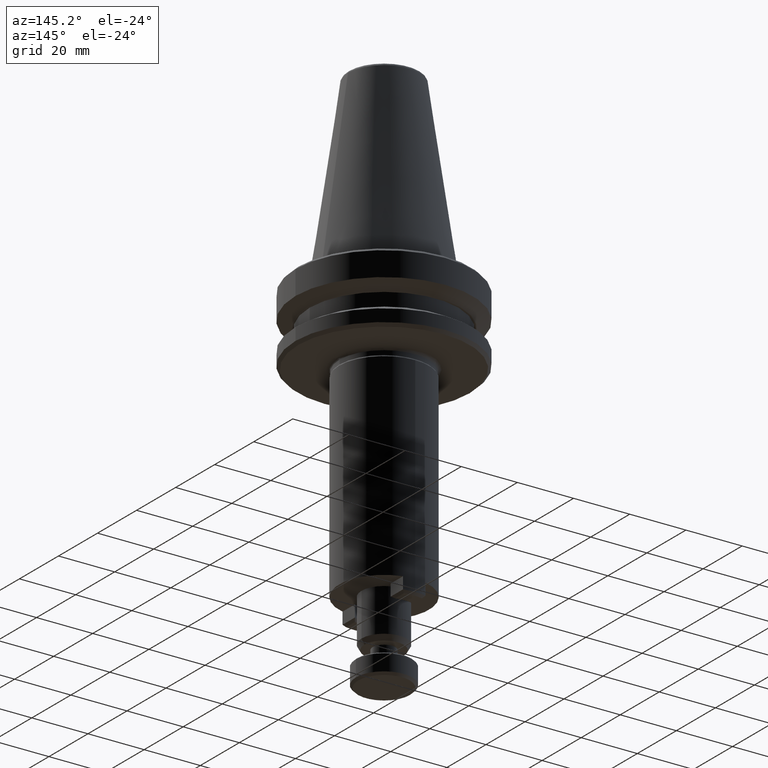
[diagram: clean part render]
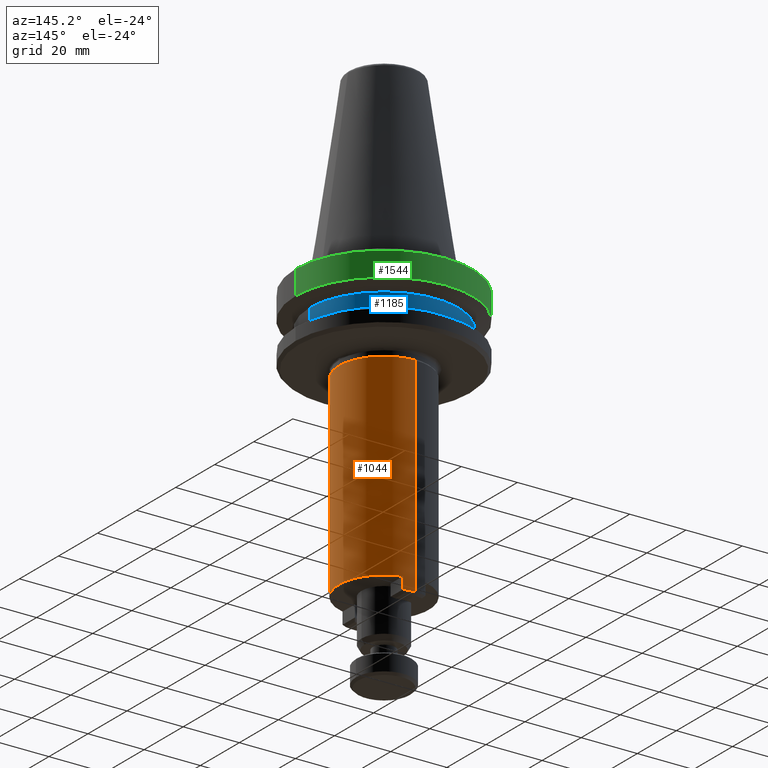
[diagram: same view with three faces highlighted in distinct colors, each labeled with its STEP entity id]
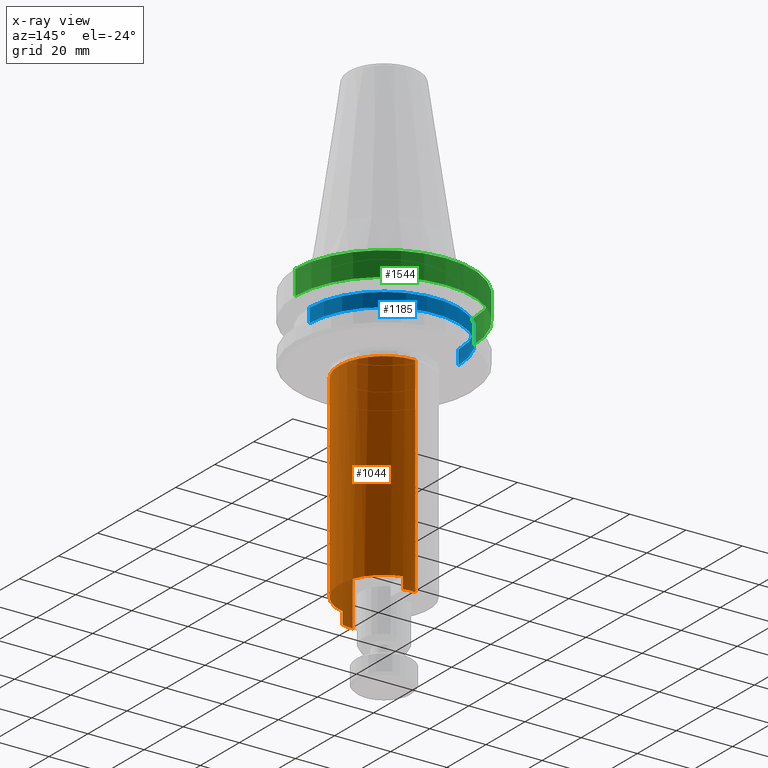
[diagram: x-ray of the same camera — body ghosted, the three highlighted faces saturated]
A machine part, auxiliary view with three faces highlighted in distinct colors.
The next image is the same camera in x-ray (body ghosted, the three faces saturated) — at least one of them is partly hidden behind the body in this view.
Their STEP definitions:

[orange] entity #1044 — the highlighted cylindrical surface (partial cylindrical patch) has radius 16 mm, axis along (0, -0, 1).
#14 = LINE ( 'NONE', #1564, #887 ) ;
#24 = CARTESIAN_POINT ( 'NONE',  ( 103.6964639303010100, 110.6694344999690100, 23.16104099501840000 ) ) ;
#37 = DIRECTION ( 'NONE',  ( 0.0000000000000000000, -2.710505431213761100E-017, 1.000000000000000000 ) ) ;
#52 = CIRCLE ( 'NONE', #1919, 16.00000000000001400 ) ;
#129 = DIRECTION ( 'NONE',  ( 0.0000000000000000000, -2.710505431213761100E-017, 1.000000000000000000 ) ) ;
#135 = VERTEX_POINT ( 'NONE', #2187 ) ;
#155 = ORIENTED_EDGE ( 'NONE', *, *, #2237, .F. ) ;
#219 = DIRECTION ( 'NONE',  ( 0.0000000000000000000, -1.000000000000000000, 0.0000000000000000000 ) ) ;
#238 = CARTESIAN_POINT ( 'NONE',  ( 103.6964639303010100, 94.66943449996901400, 23.16104099501840000 ) ) ;
#268 = DIRECTION ( 'NONE',  ( 0.0000000000000000000, -1.000000000000000000, 0.0000000000000000000 ) ) ;
#320 = CIRCLE ( 'NONE', #1511, 16.00000000000000000 ) ;
#361 = EDGE_CURVE ( 'NONE', #1971, #2012, #1680, .T. ) ;
#423 = CARTESIAN_POINT ( 'NONE',  ( 103.6964639303010100, 110.6694344999690100, 23.16104099501840000 ) ) ;
#465 = AXIS2_PLACEMENT_3D ( 'NONE', #514, #2108, #1923 ) ;
#497 = ORIENTED_EDGE ( 'NONE', *, *, #2190, .F. ) ;
#514 = CARTESIAN_POINT ( 'NONE',  ( 103.6964639303010100, 110.6694344999690100, 23.16104099501840400 ) ) ;
#641 = LINE ( 'NONE', #714, #2002 ) ;
#647 = ORIENTED_EDGE ( 'NONE', *, *, #361, .F. ) ;
#714 = CARTESIAN_POINT ( 'NONE',  ( 107.6964639288723300, 126.1613678851675800, 23.16104099501840400 ) ) ;
#759 = EDGE_CURVE ( 'NONE', #1269, #1659, #819, .T. ) ;
#776 = VECTOR ( 'NONE', #37, 1000.000000000000000 ) ;
#819 = LINE ( 'NONE', #1798, #776 ) ;
#846 = ORIENTED_EDGE ( 'NONE', *, *, #996, .T. ) ;
#882 = FACE_OUTER_BOUND ( 'NONE', #1078, .T. ) ;
#887 = VECTOR ( 'NONE', #1744, 1000.000000000000000 ) ;
#891 = DIRECTION ( 'NONE',  ( -0.0000000000000000000, -0.0000000000000000000, 1.000000000000000000 ) ) ;
#919 = CIRCLE ( 'NONE', #1329, 16.00000000000001400 ) ;
#980 = DIRECTION ( 'NONE',  ( 0.0000000000000000000, -2.710505431213761100E-017, 1.000000000000000000 ) ) ;
#996 = EDGE_CURVE ( 'NONE', #1679, #2085, #14, .T. ) ;
#1033 = AXIS2_PLACEMENT_3D ( 'NONE', #423, #980, #268 ) ;
#1044 = ADVANCED_FACE ( 'NONE', ( #882 ), #2199, .T. ) ;
#1072 = DIRECTION ( 'NONE',  ( -1.000000000000000000, 0.0000000000000000000, 0.0000000000000000000 ) ) ;
#1078 = EDGE_LOOP ( 'NONE', ( #2081, #1140, #497, #155, #647, #1870, #846, #1383, #1355 ) ) ;
#1133 = EDGE_CURVE ( 'NONE', #1664, #1269, #1615, .T. ) ;
#1140 = ORIENTED_EDGE ( 'NONE', *, *, #759, .T. ) ;
#1199 = CARTESIAN_POINT ( 'NONE',  ( 103.6964639303010100, 126.6694344999690400, 97.36104099501800100 ) ) ;
#1206 = DIRECTION ( 'NONE',  ( -1.000000000000000000, 0.0000000000000000000, 0.0000000000000000000 ) ) ;
#1210 = VECTOR ( 'NONE', #129, 1000.000000000000000 ) ;
#1212 = CARTESIAN_POINT ( 'NONE',  ( 107.6964639316933600, 95.17750111549885600, 27.36104099901839600 ) ) ;
#1261 = DIRECTION ( 'NONE',  ( 0.0000000000000000000, -2.710505431213761100E-017, 1.000000000000000000 ) ) ;
#1269 = VERTEX_POINT ( 'NONE', #1649 ) ;
#1286 = CARTESIAN_POINT ( 'NONE',  ( 107.6964639321195800, 95.17750111560890500, 23.16104099501840000 ) ) ;
#1329 = AXIS2_PLACEMENT_3D ( 'NONE', #2074, #1881, #1206 ) ;
#1355 = ORIENTED_EDGE ( 'NONE', *, *, #1797, .T. ) ;
#1383 = ORIENTED_EDGE ( 'NONE', *, *, #1486, .T. ) ;
#1423 = CARTESIAN_POINT ( 'NONE',  ( 103.6964639303010100, 110.6694344999690100, 97.36104099501800100 ) ) ;
#1456 = EDGE_CURVE ( 'NONE', #1971, #1679, #1581, .T. ) ;
#1461 = CARTESIAN_POINT ( 'NONE',  ( 103.6964639303010100, 110.6694344999690100, 27.36104099901840300 ) ) ;
#1486 = EDGE_CURVE ( 'NONE', #2085, #135, #320, .T. ) ;
#1511 = AXIS2_PLACEMENT_3D ( 'NONE', #1461, #2257, #2019 ) ;
#1564 = CARTESIAN_POINT ( 'NONE',  ( 107.6964639339381600, 95.17750111607846000, 23.16104099501840400 ) ) ;
#1581 = CIRCLE ( 'NONE', #1033, 16.00000000000000000 ) ;
#1615 = CIRCLE ( 'NONE', #1654, 16.00000000000000000 ) ;
#1649 = CARTESIAN_POINT ( 'NONE',  ( 103.6964639303010100, 126.6694344999690400, 23.16104099501840000 ) ) ;
#1654 = AXIS2_PLACEMENT_3D ( 'NONE', #24, #1261, #219 ) ;
#1659 = VERTEX_POINT ( 'NONE', #1199 ) ;
#1664 = VERTEX_POINT ( 'NONE', #1853 ) ;
#1679 = VERTEX_POINT ( 'NONE', #1286 ) ;
#1680 = LINE ( 'NONE', #1947, #1210 ) ;
#1744 = DIRECTION ( 'NONE',  ( 0.0000000000000000000, -2.710505431213761100E-017, 1.000000000000000000 ) ) ;
#1784 = CARTESIAN_POINT ( 'NONE',  ( 119.6964639303010200, 110.6694344999690100, 97.36104099501800100 ) ) ;
#1797 = EDGE_CURVE ( 'NONE', #135, #1664, #641, .T. ) ;
#1798 = CARTESIAN_POINT ( 'NONE',  ( 103.6964639303010100, 126.6694344999690400, 23.16104099501840400 ) ) ;
#1853 = CARTESIAN_POINT ( 'NONE',  ( 107.6964639296286900, 126.1613678851458600, 23.16104099434608400 ) ) ;
#1870 = ORIENTED_EDGE ( 'NONE', *, *, #1456, .T. ) ;
#1881 = DIRECTION ( 'NONE',  ( -0.0000000000000000000, -0.0000000000000000000, 1.000000000000000000 ) ) ;
#1894 = CARTESIAN_POINT ( 'NONE',  ( 103.6964639303010100, 94.66943449996901400, 97.36104099501800100 ) ) ;
#1919 = AXIS2_PLACEMENT_3D ( 'NONE', #1423, #891, #1072 ) ;
#1923 = DIRECTION ( 'NONE',  ( 0.0000000000000000000, -1.000000000000000000, 0.0000000000000000000 ) ) ;
#1927 = DIRECTION ( 'NONE',  ( -0.0000000000000000000, 2.710505431213761100E-017, -1.000000000000000000 ) ) ;
#1947 = CARTESIAN_POINT ( 'NONE',  ( 103.6964639303010100, 94.66943449996901400, 23.16104099501840400 ) ) ;
#1971 = VERTEX_POINT ( 'NONE', #238 ) ;
#2002 = VECTOR ( 'NONE', #1927, 1000.000000000000000 ) ;
#2012 = VERTEX_POINT ( 'NONE', #1894 ) ;
#2019 = DIRECTION ( 'NONE',  ( 0.0000000000000000000, -1.000000000000000000, 0.0000000000000000000 ) ) ;
#2074 = CARTESIAN_POINT ( 'NONE',  ( 103.6964639303010100, 110.6694344999690100, 97.36104099501800100 ) ) ;
#2081 = ORIENTED_EDGE ( 'NONE', *, *, #1133, .T. ) ;
#2085 = VERTEX_POINT ( 'NONE', #1212 ) ;
#2108 = DIRECTION ( 'NONE',  ( 0.0000000000000000000, -2.710505431213761100E-017, 1.000000000000000000 ) ) ;
#2167 = VERTEX_POINT ( 'NONE', #1784 ) ;
#2187 = CARTESIAN_POINT ( 'NONE',  ( 107.6964639295866800, 126.1613678849831400, 27.36104099901839600 ) ) ;
#2190 = EDGE_CURVE ( 'NONE', #2167, #1659, #919, .T. ) ;
#2199 = CYLINDRICAL_SURFACE ( 'NONE', #465, 16.00000000000000000 ) ;
#2237 = EDGE_CURVE ( 'NONE', #2012, #2167, #52, .T. ) ;
#2257 = DIRECTION ( 'NONE',  ( 0.0000000000000000000, -2.710505431213761100E-017, 1.000000000000000000 ) ) ;

[blue] entity #1185 — the highlighted cylindrical surface (partial cylindrical patch) has radius 26.5 mm, axis along (-0, -0, -1).
#279 = EDGE_CURVE ( 'NONE', #1110, #1481, #1891, .T. ) ;
#294 = CARTESIAN_POINT ( 'NONE',  ( 130.1964639249378900, 110.6694344999690100, -1.638959004981580800 ) ) ;
#308 = EDGE_CURVE ( 'NONE', #345, #1110, #2259, .T. ) ;
#322 = CARTESIAN_POINT ( 'NONE',  ( 77.19646393566412700, 110.6694344999690100, 113.2610409950169800 ) ) ;
#344 = AXIS2_PLACEMENT_3D ( 'NONE', #1508, #2223, #466 ) ;
#345 = VERTEX_POINT ( 'NONE', #322 ) ;
#446 = ORIENTED_EDGE ( 'NONE', *, *, #279, .F. ) ;
#466 = DIRECTION ( 'NONE',  ( -1.000000000000000000, 0.0000000000000000000, 0.0000000000000000000 ) ) ;
#474 = CARTESIAN_POINT ( 'NONE',  ( 77.19646393566412700, 110.6694344999690100, -1.638959004981580800 ) ) ;
#747 = CARTESIAN_POINT ( 'NONE',  ( 103.6964639303010100, 110.6694344999690100, -1.638959004981580800 ) ) ;
#800 = DIRECTION ( 'NONE',  ( -0.0000000000000000000, -0.0000000000000000000, -1.000000000000000000 ) ) ;
#807 = EDGE_LOOP ( 'NONE', ( #1402, #2210, #446, #1809 ) ) ;
#843 = AXIS2_PLACEMENT_3D ( 'NONE', #747, #1289, #1616 ) ;
#884 = DIRECTION ( 'NONE',  ( -1.000000000000000000, 0.0000000000000000000, 0.0000000000000000000 ) ) ;
#940 = DIRECTION ( 'NONE',  ( -0.0000000000000000000, -0.0000000000000000000, -1.000000000000000000 ) ) ;
#958 = VECTOR ( 'NONE', #940, 1000.000000000000000 ) ;
#1023 = CYLINDRICAL_SURFACE ( 'NONE', #843, 26.49999999463688400 ) ;
#1038 = VERTEX_POINT ( 'NONE', #1573 ) ;
#1110 = VERTEX_POINT ( 'NONE', #1245 ) ;
#1185 = ADVANCED_FACE ( 'NONE', ( #1554 ), #1023, .T. ) ;
#1245 = CARTESIAN_POINT ( 'NONE',  ( 77.19646393566412700, 110.6694344999690100, 108.2610409950168700 ) ) ;
#1289 = DIRECTION ( 'NONE',  ( -0.0000000000000000000, -0.0000000000000000000, -1.000000000000000000 ) ) ;
#1312 = VECTOR ( 'NONE', #800, 1000.000000000000000 ) ;
#1363 = EDGE_CURVE ( 'NONE', #345, #1038, #2116, .T. ) ;
#1402 = ORIENTED_EDGE ( 'NONE', *, *, #1363, .T. ) ;
#1426 = CARTESIAN_POINT ( 'NONE',  ( 103.6964639303010100, 110.6694344999690100, 108.2610409950168700 ) ) ;
#1481 = VERTEX_POINT ( 'NONE', #2228 ) ;
#1508 = CARTESIAN_POINT ( 'NONE',  ( 103.6964639303010100, 110.6694344999690100, 113.2610409950169800 ) ) ;
#1554 = FACE_OUTER_BOUND ( 'NONE', #807, .T. ) ;
#1573 = CARTESIAN_POINT ( 'NONE',  ( 130.1964639249378900, 110.6694344999690100, 113.2610409950169800 ) ) ;
#1616 = DIRECTION ( 'NONE',  ( -1.000000000000000000, 0.0000000000000000000, 0.0000000000000000000 ) ) ;
#1618 = AXIS2_PLACEMENT_3D ( 'NONE', #1426, #1843, #884 ) ;
#1694 = EDGE_CURVE ( 'NONE', #1038, #1481, #1796, .T. ) ;
#1796 = LINE ( 'NONE', #294, #958 ) ;
#1809 = ORIENTED_EDGE ( 'NONE', *, *, #308, .F. ) ;
#1843 = DIRECTION ( 'NONE',  ( -0.0000000000000000000, -0.0000000000000000000, -1.000000000000000000 ) ) ;
#1891 = CIRCLE ( 'NONE', #1618, 26.49999999463688400 ) ;
#2116 = CIRCLE ( 'NONE', #344, 26.49999999463688400 ) ;
#2210 = ORIENTED_EDGE ( 'NONE', *, *, #1694, .T. ) ;
#2223 = DIRECTION ( 'NONE',  ( -0.0000000000000000000, -0.0000000000000000000, -1.000000000000000000 ) ) ;
#2228 = CARTESIAN_POINT ( 'NONE',  ( 130.1964639249378900, 110.6694344999690100, 108.2610409950168700 ) ) ;
#2259 = LINE ( 'NONE', #474, #1312 ) ;

[green] entity #1544 — the highlighted cylindrical surface (partial cylindrical patch) has radius 31.5 mm, axis along (-0, -0, -1).
#30 = DIRECTION ( 'NONE',  ( -1.000000000000000000, 0.0000000000000000000, 0.0000000000000000000 ) ) ;
#247 = EDGE_CURVE ( 'NONE', #388, #427, #1482, .T. ) ;
#258 = DIRECTION ( 'NONE',  ( -0.0000000000000000000, -0.0000000000000000000, -1.000000000000000000 ) ) ;
#383 = CARTESIAN_POINT ( 'NONE',  ( 103.6964639303010100, 110.6694344999690100, 124.3610409950168600 ) ) ;
#388 = VERTEX_POINT ( 'NONE', #584 ) ;
#427 = VERTEX_POINT ( 'NONE', #1208 ) ;
#485 = VECTOR ( 'NONE', #258, 1000.000000000000000 ) ;
#504 = AXIS2_PLACEMENT_3D ( 'NONE', #1080, #2152, #869 ) ;
#507 = CARTESIAN_POINT ( 'NONE',  ( 72.19646393566456800, 110.6694344999690100, -1.638959004981580800 ) ) ;
#551 = DIRECTION ( 'NONE',  ( -1.000000000000000000, 0.0000000000000000000, 0.0000000000000000000 ) ) ;
#584 = CARTESIAN_POINT ( 'NONE',  ( 135.1964639249374600, 110.6694344999690100, 124.3610409950168600 ) ) ;
#614 = CYLINDRICAL_SURFACE ( 'NONE', #1998, 31.49999999463644300 ) ;
#694 = EDGE_CURVE ( 'NONE', #814, #388, #916, .T. ) ;
#703 = ORIENTED_EDGE ( 'NONE', *, *, #694, .T. ) ;
#814 = VERTEX_POINT ( 'NONE', #1848 ) ;
#869 = DIRECTION ( 'NONE',  ( -1.000000000000000000, 0.0000000000000000000, 0.0000000000000000000 ) ) ;
#916 = CIRCLE ( 'NONE', #1108, 31.49999999463644300 ) ;
#944 = ORIENTED_EDGE ( 'NONE', *, *, #2126, .F. ) ;
#966 = VERTEX_POINT ( 'NONE', #1374 ) ;
#1034 = DIRECTION ( 'NONE',  ( -0.0000000000000000000, -0.0000000000000000000, -1.000000000000000000 ) ) ;
#1039 = EDGE_CURVE ( 'NONE', #814, #966, #1771, .T. ) ;
#1077 = CARTESIAN_POINT ( 'NONE',  ( 103.6964639303010100, 110.6694344999690100, -1.638959004981580800 ) ) ;
#1080 = CARTESIAN_POINT ( 'NONE',  ( 103.6964639303010100, 110.6694344999690100, 115.7611830013336300 ) ) ;
#1108 = AXIS2_PLACEMENT_3D ( 'NONE', #383, #1609, #551 ) ;
#1136 = FACE_OUTER_BOUND ( 'NONE', #1462, .T. ) ;
#1208 = CARTESIAN_POINT ( 'NONE',  ( 135.1964639249374600, 110.6694344999690100, 115.7611830013336300 ) ) ;
#1214 = ORIENTED_EDGE ( 'NONE', *, *, #247, .T. ) ;
#1297 = DIRECTION ( 'NONE',  ( -0.0000000000000000000, -0.0000000000000000000, -1.000000000000000000 ) ) ;
#1301 = VECTOR ( 'NONE', #1034, 1000.000000000000000 ) ;
#1374 = CARTESIAN_POINT ( 'NONE',  ( 72.19646393566456800, 110.6694344999690100, 115.7611830013336300 ) ) ;
#1430 = CARTESIAN_POINT ( 'NONE',  ( 135.1964639249374600, 110.6694344999690100, -1.638959004981580800 ) ) ;
#1462 = EDGE_LOOP ( 'NONE', ( #703, #1214, #944, #1599 ) ) ;
#1482 = LINE ( 'NONE', #1430, #485 ) ;
#1544 = ADVANCED_FACE ( 'NONE', ( #1136 ), #614, .T. ) ;
#1599 = ORIENTED_EDGE ( 'NONE', *, *, #1039, .F. ) ;
#1609 = DIRECTION ( 'NONE',  ( -0.0000000000000000000, -0.0000000000000000000, -1.000000000000000000 ) ) ;
#1771 = LINE ( 'NONE', #507, #1301 ) ;
#1848 = CARTESIAN_POINT ( 'NONE',  ( 72.19646393566456800, 110.6694344999690100, 124.3610409950168600 ) ) ;
#1914 = CIRCLE ( 'NONE', #504, 31.49999999463644300 ) ;
#1998 = AXIS2_PLACEMENT_3D ( 'NONE', #1077, #1297, #30 ) ;
#2126 = EDGE_CURVE ( 'NONE', #966, #427, #1914, .T. ) ;
#2152 = DIRECTION ( 'NONE',  ( -0.0000000000000000000, -0.0000000000000000000, -1.000000000000000000 ) ) ;